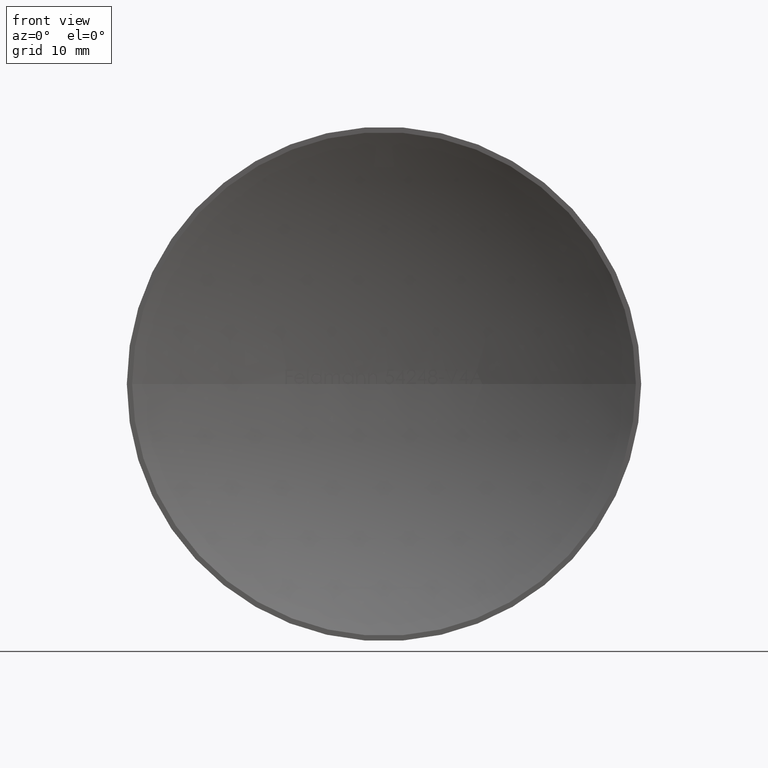
[diagram: clean part render]
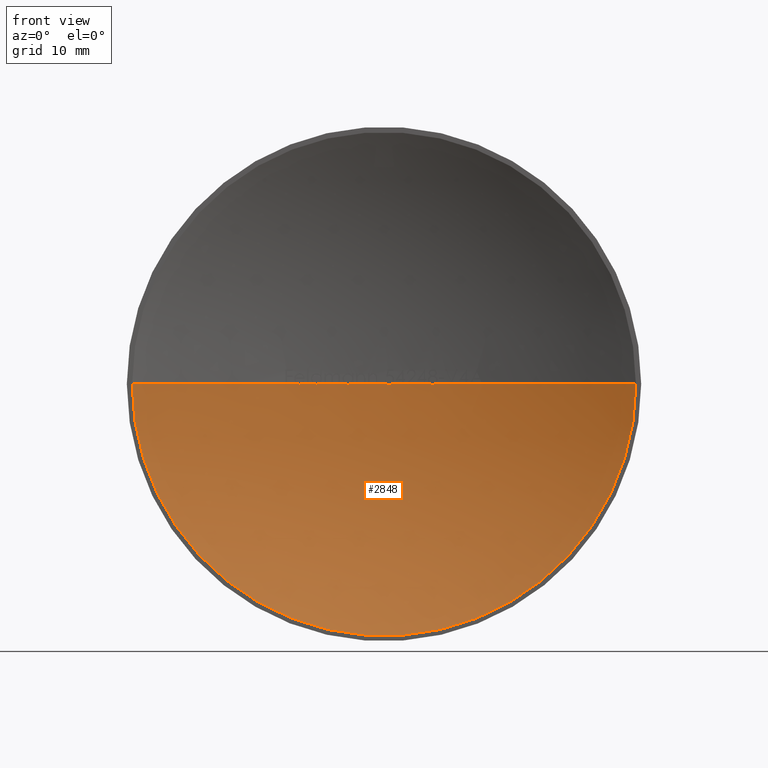
[diagram: same view with one face highlighted and labeled with its STEP entity id]
A machine part, front view. The second image highlights one B-rep face of the part: STEP entity #2848.
In plain terms, the highlighted spherical surface has radius 49.6019 mm.
Its self-contained STEP definition (entity closure, byte-faithful):
#10 = VERTEX_POINT ( 'NONE', #11368 ) ;
#39 = AXIS2_PLACEMENT_3D ( 'NONE', #627, #7061, #3396 ) ;
#40 = CIRCLE ( 'NONE', #39, 49.60187499999996400 ) ;
#108 = VERTEX_POINT ( 'NONE', #2431 ) ;
#145 = CARTESIAN_POINT ( 'NONE',  ( -6.226612658368900100, 5.607629036012613500, -9.957057821960170400E-007 ) ) ;
#162 = VERTEX_POINT ( 'NONE', #5369 ) ;
#190 = ORIENTED_EDGE ( 'NONE', *, *, #9318, .T. ) ;
#207 = CIRCLE ( 'NONE', #514, 49.60187499999996400 ) ;
#216 = B_SPLINE_CURVE_WITH_KNOTS ( 'NONE', 3,
 ( #9828, #5214, #9757, #2445 ),
 .UNSPECIFIED., .F., .F.,
 ( 4, 4 ),
 ( 0.0000000000000000000, 0.1700437307193721500 ),
 .UNSPECIFIED. ) ;
#228 = VERTEX_POINT ( 'NONE', #5445 ) ;
#257 = DIRECTION ( 'NONE',  ( 1.000000000000000000, 0.0000000000000000000, 0.0000000000000000000 ) ) ;
#279 = CARTESIAN_POINT ( 'NONE',  ( 0.4714480669070638100, 5.997747877655553100, -0.03392094017094004300 ) ) ;
#280 = DIRECTION ( 'NONE',  ( 1.000000000000000000, 0.0000000000000000000, 0.0000000000000000000 ) ) ;
#316 = CARTESIAN_POINT ( 'NONE',  ( -3.002003205128187500, 5.909073084964234100, 1.838196808095394700E-016 ) ) ;
#345 = VERTEX_POINT ( 'NONE', #7935 ) ;
#352 = AXIS2_PLACEMENT_3D ( 'NONE', #7267, #9375, #6250 ) ;
#365 = DIRECTION ( 'NONE',  ( 1.000000000000000000, 0.0000000000000000000, 0.0000000000000000000 ) ) ;
#375 = CARTESIAN_POINT ( 'NONE',  ( 4.431990982381381400, 5.801609866054579200, -0.02017112313130817500 ) ) ;
#468 = ORIENTED_EDGE ( 'NONE', *, *, #2536, .T. ) ;
#479 = EDGE_CURVE ( 'NONE', #631, #7059, #5801, .T. ) ;
#514 = AXIS2_PLACEMENT_3D ( 'NONE', #6799, #8611, #6722 ) ;
#522 = CARTESIAN_POINT ( 'NONE',  ( 1.463868500272714700E-014, -43.60187499999997800, 0.0000000000000000000 ) ) ;
#549 = VERTEX_POINT ( 'NONE', #10954 ) ;
#555 = CARTESIAN_POINT ( 'NONE',  ( 4.587994646564998100, 5.787347169221382300, -0.03334965384892677600 ) ) ;
#571 = VERTEX_POINT ( 'NONE', #5423 ) ;
#627 = CARTESIAN_POINT ( 'NONE',  ( 1.463868500272714700E-014, -43.60187499999997800, 0.0000000000000000000 ) ) ;
#631 = VERTEX_POINT ( 'NONE', #6561 ) ;
#663 = AXIS2_PLACEMENT_3D ( 'NONE', #6714, #1138, #6540 ) ;
#694 = ORIENTED_EDGE ( 'NONE', *, *, #9126, .T. ) ;
#726 = VERTEX_POINT ( 'NONE', #8865 ) ;
#757 = EDGE_CURVE ( 'NONE', #9441, #3696, #5055, .T. ) ;
#805 = CIRCLE ( 'NONE', #8875, 49.60187499999996400 ) ;
#838 = DIRECTION ( 'NONE',  ( 1.000000000000000000, 0.0000000000000000000, 0.0000000000000000000 ) ) ;
#867 = ORIENTED_EDGE ( 'NONE', *, *, #479, .F. ) ;
#912 = CARTESIAN_POINT ( 'NONE',  ( 6.343215811965830400, 5.592734630308585000, -1.734723475976807100E-015 ) ) ;
#922 = ORIENTED_EDGE ( 'NONE', *, *, #757, .T. ) ;
#936 = VERTEX_POINT ( 'NONE', #4547 ) ;
#950 = CARTESIAN_POINT ( 'NONE',  ( -1.882612179487161300, 5.964260363746792100, 1.152767489822616700E-016 ) ) ;
#995 = CARTESIAN_POINT ( 'NONE',  ( -6.226612658368900100, 5.607629036012613500, -9.957057821960170400E-007 ) ) ;
#1031 = CARTESIAN_POINT ( 'NONE',  ( 1.463868500272714700E-014, -43.60187499999997800, 0.0000000000000000000 ) ) ;
#1039 = CARTESIAN_POINT ( 'NONE',  ( 1.463868500272714700E-014, -43.60187499999997800, 0.0000000000000000000 ) ) ;
#1096 = VERTEX_POINT ( 'NONE', #9335 ) ;
#1125 = ORIENTED_EDGE ( 'NONE', *, *, #7775, .T. ) ;
#1136 = EDGE_CURVE ( 'NONE', #10200, #5657, #10416, .T. ) ;
#1138 = DIRECTION ( 'NONE',  ( 0.0000000000000000000, -0.0000000000000000000, 1.000000000000000000 ) ) ;
#1144 = AXIS2_PLACEMENT_3D ( 'NONE', #3779, #1998, #4705 ) ;
#1178 = CARTESIAN_POINT ( 'NONE',  ( 0.4399876535721772300, 5.998039705895249300, -0.03267363762147541100 ) ) ;
#1184 = CARTESIAN_POINT ( 'NONE',  ( 4.568991636618609900, 5.789107661918667000, -0.03392094017094017500 ) ) ;
#1185 = CARTESIAN_POINT ( 'NONE',  ( -7.883019392761097400, 5.369585555879120300, -0.01445518751569135500 ) ) ;
#1188 = DIRECTION ( 'NONE',  ( 1.000000000000000000, 0.0000000000000000000, 0.0000000000000000000 ) ) ;
#1211 = ORIENTED_EDGE ( 'NONE', *, *, #3518, .F. ) ;
#1219 = CARTESIAN_POINT ( 'NONE',  ( -7.928314283204311000, 5.362271021320989200, -0.01662975550942169200 ) ) ;
#1237 = ORIENTED_EDGE ( 'NONE', *, *, #11775, .T. ) ;
#1247 = CIRCLE ( 'NONE', #1970, 49.60187499999996400 ) ;
#1253 = ORIENTED_EDGE ( 'NONE', *, *, #2436, .T. ) ;
#1305 = CARTESIAN_POINT ( 'NONE',  ( 3.731303418803432000, 5.859457152626555800, -2.284764394242368700E-016 ) ) ;
#1324 = DIRECTION ( 'NONE',  ( -1.224646799147353200E-016, 8.963609366158087900E-031, -1.000000000000000000 ) ) ;
#1389 = ORIENTED_EDGE ( 'NONE', *, *, #4858, .T. ) ;
#1440 = EDGE_CURVE ( 'NONE', #11227, #108, #6814, .T. ) ;
#1452 = VERTEX_POINT ( 'NONE', #912 ) ;
#1481 = VERTEX_POINT ( 'NONE', #7369 ) ;
#1490 = CARTESIAN_POINT ( 'NONE',  ( -1.763888888888871100, 5.968627312396208100, 3.143324893541612600E-015 ) ) ;
#1496 = CARTESIAN_POINT ( 'NONE',  ( 0.5363757591702189600, 5.997099734483198200, -0.03118921258593569300 ) ) ;
#1503 = CIRCLE ( 'NONE', #10050, 49.60187499999996400 ) ;
#1535 = AXIS2_PLACEMENT_3D ( 'NONE', #3769, #6668, #1935 ) ;
#1569 = DIRECTION ( 'NONE',  ( -1.224646799147353200E-016, 8.963609366158087900E-031, -1.000000000000000000 ) ) ;
#1620 = CARTESIAN_POINT ( 'NONE',  ( 3.746545579650276100E-013, 5.999999999999984900, 0.0000000000000000000 ) ) ;
#1633 = ORIENTED_EDGE ( 'NONE', *, *, #9699, .T. ) ;
#1646 = EDGE_CURVE ( 'NONE', #3401, #11227, #6674, .T. ) ;
#1675 = ORIENTED_EDGE ( 'NONE', *, *, #6019, .T. ) ;
#1694 = ORIENTED_EDGE ( 'NONE', *, *, #9973, .T. ) ;
#1705 = ORIENTED_EDGE ( 'NONE', *, *, #7286, .F. ) ;
#1766 = EDGE_CURVE ( 'NONE', #1452, #4307, #6362, .T. ) ;
#1774 = CARTESIAN_POINT ( 'NONE',  ( 1.463868500272714700E-014, -43.60187499999997800, 0.0000000000000000000 ) ) ;
#1796 = EDGE_CURVE ( 'NONE', #7183, #10649, #4598, .T. ) ;
#1846 = DIRECTION ( 'NONE',  ( 0.0000000000000000000, -0.0000000000000000000, 1.000000000000000000 ) ) ;
#1850 = DIRECTION ( 'NONE',  ( 1.000000000000000000, 0.0000000000000000000, 0.0000000000000000000 ) ) ;
#1860 = DIRECTION ( 'NONE',  ( 1.000000000000000000, 0.0000000000000000000, 0.0000000000000000000 ) ) ;
#1887 = B_SPLINE_CURVE_WITH_KNOTS ( 'NONE', 3,
 ( #4837, #3826, #2004, #3013 ),
 .UNSPECIFIED., .F., .F.,
 ( 4, 4 ),
 ( 0.0000000000000000000, 0.1700436378608668500 ),
 .UNSPECIFIED. ) ;
#1899 = DIRECTION ( 'NONE',  ( -1.224646799147353200E-016, 8.963609366158087900E-031, -1.000000000000000000 ) ) ;
#1907 = EDGE_CURVE ( 'NONE', #4742, #9565, #10403, .T. ) ;
#1908 = CARTESIAN_POINT ( 'NONE',  ( -7.943065154246779600, 5.359879786909640000, -0.01696047008547008800 ) ) ;
#1935 = DIRECTION ( 'NONE',  ( 1.000000000000000000, 0.0000000000000000000, 0.0000000000000000000 ) ) ;
#1944 = DIRECTION ( 'NONE',  ( 1.000000000000000000, 0.0000000000000000000, 0.0000000000000000000 ) ) ;
#1959 = CIRCLE ( 'NONE', #8129, 49.60187499999996400 ) ;
#1970 = AXIS2_PLACEMENT_3D ( 'NONE', #9823, #5160, #7043 ) ;
#1982 = SPHERICAL_SURFACE ( 'NONE', #6621, 49.60187499999996400 ) ;
#1997 = CARTESIAN_POINT ( 'NONE',  ( -8.041944011039884500, 5.343756765751459500, -0.01015184787735114300 ) ) ;
#1998 = DIRECTION ( 'NONE',  ( 0.0000000000000000000, -0.0000000000000000000, 1.000000000000000000 ) ) ;
#2004 = CARTESIAN_POINT ( 'NONE',  ( -6.458560611290854700, 5.577741001095624500, -0.01005142905143983600 ) ) ;
#2007 = ORIENTED_EDGE ( 'NONE', *, *, #2229, .T. ) ;
#2010 = DIRECTION ( 'NONE',  ( 0.0000000000000000000, 0.0000000000000000000, 1.000000000000000000 ) ) ;
#2031 = CARTESIAN_POINT ( 'NONE',  ( -7.913186583796950800, 5.364718321583998400, -0.01618472506284433800 ) ) ;
#2046 = CARTESIAN_POINT ( 'NONE',  ( -4.391605500818018500E-014, 1.665334536937734800E-013, 0.0000000000000000000 ) ) ;
#2060 = AXIS2_PLACEMENT_3D ( 'NONE', #6228, #1569, #11637 ) ;
#2103 = B_SPLINE_CURVE_WITH_KNOTS ( 'NONE', 3,
 ( #145, #9477, #11198, #5676, #7734, #7701, #8718, #2132 ),
 .UNSPECIFIED., .F., .F.,
 ( 4, 2, 2, 4 ),
 ( 0.6910401012932913000, 0.8455200506466424800, 0.9227600253233212400, 1.000000000000000000 ),
 .UNSPECIFIED. ) ;
#2129 = AXIS2_PLACEMENT_3D ( 'NONE', #8088, #3504, #4585 ) ;
#2132 = CARTESIAN_POINT ( 'NONE',  ( -6.364946414262798100, 5.589924855277106800, -0.01696047008546943200 ) ) ;
#2137 = CIRCLE ( 'NONE', #3253, 49.60187499999996400 ) ;
#2142 = EDGE_CURVE ( 'NONE', #5754, #7059, #10974, .T. ) ;
#2183 = CARTESIAN_POINT ( 'NONE',  ( 0.4013284573055194700, 5.998370574416129300, -0.02858794078399176300 ) ) ;
#2219 = CIRCLE ( 'NONE', #663, 49.60187499999996400 ) ;
#2227 = CARTESIAN_POINT ( 'NONE',  ( 1.463868500272714700E-014, -43.60187499999997800, 0.0000000000000000000 ) ) ;
#2229 = EDGE_CURVE ( 'NONE', #11455, #4065, #3232, .T. ) ;
#2243 = VERTEX_POINT ( 'NONE', #5696 ) ;
#2266 = CIRCLE ( 'NONE', #4148, 49.60187499999996400 ) ;
#2270 = CARTESIAN_POINT ( 'NONE',  ( 4.531420792569199400, 5.792583847021854900, -0.03299744222188836400 ) ) ;
#2298 = DIRECTION ( 'NONE',  ( 1.000000000000000000, 0.0000000000000000000, 0.0000000000000000000 ) ) ;
#2308 = AXIS2_PLACEMENT_3D ( 'NONE', #10644, #2368, #365 ) ;
#2317 = ORIENTED_EDGE ( 'NONE', *, *, #1646, .T. ) ;
#2368 = DIRECTION ( 'NONE',  ( 0.0000000000000000000, 0.0000000000000000000, 1.000000000000000000 ) ) ;
#2381 = CARTESIAN_POINT ( 'NONE',  ( -7.800518608418492800, 5.382795007984992000, 1.945083943452014200E-006 ) ) ;
#2389 = DIRECTION ( 'NONE',  ( 1.000000000000000000, 0.0000000000000000000, 0.0000000000000000000 ) ) ;
#2395 = DIRECTION ( 'NONE',  ( 0.0000000000000000000, -0.0000000000000000000, 1.000000000000000000 ) ) ;
#2396 = CARTESIAN_POINT ( 'NONE',  ( -3.303843915656597300, 5.889852252255058900, -0.01009591311907614800 ) ) ;
#2398 = AXIS2_PLACEMENT_3D ( 'NONE', #2808, #10229, #11157 ) ;
#2400 = ORIENTED_EDGE ( 'NONE', *, *, #11480, .T. ) ;
#2414 = DIRECTION ( 'NONE',  ( 0.0000000000000000000, 0.0000000000000000000, 1.000000000000000000 ) ) ;
#2418 = CARTESIAN_POINT ( 'NONE',  ( -5.851362179487160200, 5.653658335454711200, 4.021375415970687700E-015 ) ) ;
#2431 = CARTESIAN_POINT ( 'NONE',  ( -2.493189102564084900, 5.937301533471763400, 4.044532931607455300E-015 ) ) ;
#2436 = EDGE_CURVE ( 'NONE', #6703, #4154, #9695, .T. ) ;
#2440 = AXIS2_PLACEMENT_3D ( 'NONE', #2046, #8546, #2968 ) ;
#2445 = CARTESIAN_POINT ( 'NONE',  ( -3.530511154244028800, 5.874194794178776200, -2.442055884541107000E-006 ) ) ;
#2451 = CARTESIAN_POINT ( 'NONE',  ( 0.6300683526230406200, 5.996006567048705300, -0.01163507838607711300 ) ) ;
#2456 = ORIENTED_EDGE ( 'NONE', *, *, #2142, .T. ) ;
#2470 = ORIENTED_EDGE ( 'NONE', *, *, #6840, .T. ) ;
#2480 = CARTESIAN_POINT ( 'NONE',  ( 1.463868500272714700E-014, -43.60187499999997800, 0.0000000000000000000 ) ) ;
#2497 = ORIENTED_EDGE ( 'NONE', *, *, #10679, .T. ) ;
#2530 = CIRCLE ( 'NONE', #11724, 49.60187499999996400 ) ;
#2536 = EDGE_CURVE ( 'NONE', #108, #3065, #3875, .T. ) ;
#2642 = CARTESIAN_POINT ( 'NONE',  ( 1.463868500272714700E-014, -43.60187499999997800, 0.0000000000000000000 ) ) ;
#2690 = CIRCLE ( 'NONE', #8402, 49.60187499999996400 ) ;
#2701 = CIRCLE ( 'NONE', #10870, 49.60187499999996400 ) ;
#2779 = AXIS2_PLACEMENT_3D ( 'NONE', #5511, #11936, #1850 ) ;
#2792 = VERTEX_POINT ( 'NONE', #11032 ) ;
#2808 = CARTESIAN_POINT ( 'NONE',  ( 1.463868500272714700E-014, -43.60187499999997800, 0.0000000000000000000 ) ) ;
#2816 = CARTESIAN_POINT ( 'NONE',  ( -7.106436965811949100, 5.488292622107024100, 3.441049596577242400E-015 ) ) ;
#2848 = ADVANCED_FACE ( 'NONE', ( #9961 ), #1982, .F. ) ;
#2956 = CARTESIAN_POINT ( 'NONE',  ( -7.916472698650946600, 5.364187067465275400, -0.01628299500019538000 ) ) ;
#2968 = DIRECTION ( 'NONE',  ( 1.000000000000000000, -7.319342501363578300E-015, 0.0000000000000000000 ) ) ;
#2978 = CIRCLE ( 'NONE', #5296, 49.60187499999996400 ) ;
#2983 = DIRECTION ( 'NONE',  ( 1.000000000000000000, 0.0000000000000000000, 0.0000000000000000000 ) ) ;
#3001 = CARTESIAN_POINT ( 'NONE',  ( -7.800518608418492800, 5.382795007984992000, 1.945083943452014200E-006 ) ) ;
#3013 = CARTESIAN_POINT ( 'NONE',  ( -6.498605886093242700, 5.572448708209120300, 1.836445652789093900E-006 ) ) ;
#3016 = AXIS2_PLACEMENT_3D ( 'NONE', #10985, #5452, #7280 ) ;
#3065 = VERTEX_POINT ( 'NONE', #3614 ) ;
#3079 = CARTESIAN_POINT ( 'NONE',  ( -7.822097072414690500, 5.379358940805369500, -0.005628094156013560700 ) ) ;
#3080 = VERTEX_POINT ( 'NONE', #6300 ) ;
#3098 = AXIS2_PLACEMENT_3D ( 'NONE', #7304, #8397, #5645 ) ;
#3108 = CARTESIAN_POINT ( 'NONE',  ( 0.3330910460351451700, 5.998890002460053800, -0.01318764904280849400 ) ) ;
#3109 = CARTESIAN_POINT ( 'NONE',  ( 1.463868500272714700E-014, -43.60187499999997800, 0.0000000000000000000 ) ) ;
#3116 = CARTESIAN_POINT ( 'NONE',  ( -4.138354700854685900, 5.827064133725468100, 4.035532806357746200E-015 ) ) ;
#3171 = DIRECTION ( 'NONE',  ( 0.0000000000000000000, 0.0000000000000000000, 1.000000000000000000 ) ) ;
#3180 = DIRECTION ( 'NONE',  ( -1.000000000000000000, 0.0000000000000000000, 1.224646799147353200E-016 ) ) ;
#3189 = EDGE_CURVE ( 'NONE', #8859, #3080, #8225, .T. ) ;
#3211 = CIRCLE ( 'NONE', #9612, 49.60187499999996400 ) ;
#3224 = EDGE_CURVE ( 'NONE', #4065, #6801, #9112, .T. ) ;
#3232 = B_SPLINE_CURVE_WITH_KNOTS ( 'NONE', 3,
 ( #4915, #3820, #1997, #8491 ),
 .UNSPECIFIED., .F., .F.,
 ( 4, 4 ),
 ( 0.0000000000000000000, 0.1815158265519445100 ),
 .UNSPECIFIED. ) ;
#3250 = EDGE_CURVE ( 'NONE', #3615, #4307, #4599, .T. ) ;
#3253 = AXIS2_PLACEMENT_3D ( 'NONE', #10949, #11809, #9121 ) ;
#3296 = B_SPLINE_CURVE_WITH_KNOTS ( 'NONE', 3,
 ( #279, #6753, #1178, #6832, #2183, #7665, #3108, #10529 ),
 .UNSPECIFIED., .F., .F.,
 ( 4, 2, 2, 4 ),
 ( 0.0000000000000000000, 0.06997804774027807700, 0.1399560954805561500, 0.2799121909611123100 ),
 .UNSPECIFIED. ) ;
#3307 = EDGE_CURVE ( 'NONE', #1096, #5066, #11636, .T. ) ;
#3316 = CARTESIAN_POINT ( 'NONE',  ( 7.666132478632492900, 5.404006446370083000, -4.694152300898195200E-016 ) ) ;
#3375 = DIRECTION ( 'NONE',  ( 0.0000000000000000000, -0.0000000000000000000, 1.000000000000000000 ) ) ;
#3377 = ORIENTED_EDGE ( 'NONE', *, *, #8657, .T. ) ;
#3396 = DIRECTION ( 'NONE',  ( -1.000000000000000000, 0.0000000000000000000, 1.224646799147353200E-016 ) ) ;
#3401 = VERTEX_POINT ( 'NONE', #1490 ) ;
#3450 = CARTESIAN_POINT ( 'NONE',  ( 1.463868500272714700E-014, -43.60187499999997800, 0.0000000000000000000 ) ) ;
#3451 = AXIS2_PLACEMENT_3D ( 'NONE', #4721, #3922, #10262 ) ;
#3461 = CARTESIAN_POINT ( 'NONE',  ( 4.637264987956470500, 5.782749932899021100, -0.03047522695824051900 ) ) ;
#3464 = EDGE_CURVE ( 'NONE', #8816, #6703, #216, .T. ) ;
#3498 = ORIENTED_EDGE ( 'NONE', *, *, #1440, .T. ) ;
#3504 = DIRECTION ( 'NONE',  ( 0.0000000000000000000, 0.0000000000000000000, 1.000000000000000000 ) ) ;
#3518 = EDGE_CURVE ( 'NONE', #7183, #549, #2137, .T. ) ;
#3533 = CIRCLE ( 'NONE', #10384, 49.60187499999996400 ) ;
#3614 = CARTESIAN_POINT ( 'NONE',  ( -2.611912393162378900, 5.931183831108630700, 0.0000000000000000000 ) ) ;
#3615 = VERTEX_POINT ( 'NONE', #7484 ) ;
#3647 = VERTEX_POINT ( 'NONE', #11885 ) ;
#3670 = EDGE_CURVE ( 'NONE', #1481, #10200, #1887, .T. ) ;
#3690 = CARTESIAN_POINT ( 'NONE',  ( -2.883279914529897100, 5.916128801143801600, 4.042804323682479400E-015 ) ) ;
#3696 = VERTEX_POINT ( 'NONE', #4752 ) ;
#3723 = DIRECTION ( 'NONE',  ( 0.0000000000000000000, -0.0000000000000000000, 1.000000000000000000 ) ) ;
#3769 = CARTESIAN_POINT ( 'NONE',  ( 1.463868500272714700E-014, -43.60187499999997800, 0.0000000000000000000 ) ) ;
#3779 = CARTESIAN_POINT ( 'NONE',  ( 1.463868500272714700E-014, -43.60187499999997800, 0.0000000000000000000 ) ) ;
#3805 = CARTESIAN_POINT ( 'NONE',  ( 1.463868500272714700E-014, -43.60187499999997800, 0.0000000000000000000 ) ) ;
#3820 = CARTESIAN_POINT ( 'NONE',  ( -7.995302772501664100, 5.351405700863822700, -0.01574102966602066900 ) ) ;
#3826 = CARTESIAN_POINT ( 'NONE',  ( -6.413997492261013500, 5.583578576024883900, -0.01562889026966440800 ) ) ;
#3833 = EDGE_CURVE ( 'NONE', #3647, #4211, #2701, .T. ) ;
#3861 = DIRECTION ( 'NONE',  ( 1.000000000000000000, 0.0000000000000000000, 0.0000000000000000000 ) ) ;
#3863 = CIRCLE ( 'NONE', #5640, 49.60187499999996400 ) ;
#3875 = CIRCLE ( 'NONE', #352, 49.60187499999996400 ) ;
#3895 = VERTEX_POINT ( 'NONE', #11717 ) ;
#3922 = DIRECTION ( 'NONE',  ( 0.0000000000000000000, 0.0000000000000000000, 1.000000000000000000 ) ) ;
#4000 = CARTESIAN_POINT ( 'NONE',  ( 1.463868500272714700E-014, -43.60187499999997800, 0.0000000000000000000 ) ) ;
#4019 = EDGE_CURVE ( 'NONE', #4211, #7732, #2690, .T. ) ;
#4038 = EDGE_CURVE ( 'NONE', #4732, #10716, #207, .T. ) ;
#4065 = VERTEX_POINT ( 'NONE', #4911 ) ;
#4076 = EDGE_CURVE ( 'NONE', #7732, #1096, #9540, .T. ) ;
#4102 = DIRECTION ( 'NONE',  ( -1.224646799147353200E-016, 8.963609366158087900E-031, -1.000000000000000000 ) ) ;
#4118 = B_SPLINE_CURVE_WITH_KNOTS ( 'NONE', 3,
 ( #5304, #2451, #5176, #1496, #7982, #5222 ),
 .UNSPECIFIED., .F., .F.,
 ( 4, 2, 4 ),
 ( 0.7372710863262805800, 0.8686355431631402900, 1.000000000000000000 ),
 .UNSPECIFIED. ) ;
#4129 = CARTESIAN_POINT ( 'NONE',  ( 1.463868500272714700E-014, -43.60187499999997800, 0.0000000000000000000 ) ) ;
#4139 = EDGE_CURVE ( 'NONE', #6566, #11455, #7259, .T. ) ;
#4140 = CARTESIAN_POINT ( 'NONE',  ( 4.501985760791040300, 5.795275009956854200, -0.03103153326414219800 ) ) ;
#4148 = AXIS2_PLACEMENT_3D ( 'NONE', #7139, #2414, #5308 ) ;
#4150 = EDGE_LOOP ( 'NONE', ( #1211, #8115, #1237, #1389, #10455, #10806, #2317, #3498, #468, #11773, #4937, #694, #1694, #7711, #1253, #1125, #2400, #6243, #7121, #9754, #5949, #2497, #9655, #3377, #8404, #11864, #1675, #190, #7063, #2007, #10884, #6487, #11872, #8969, #10875, #4226, #9183, #922, #8410, #9825, #6167, #1633, #5485, #7981, #10302, #1705, #2456, #867, #2470, #5968, #4221, #8682, #8072, #11861 ) ) ;
#4154 = VERTEX_POINT ( 'NONE', #3116 ) ;
#4181 = CARTESIAN_POINT ( 'NONE',  ( 4.369938086682133800, 5.807128643061711100, -1.037965149739277700E-005 ) ) ;
#4211 = VERTEX_POINT ( 'NONE', #5230 ) ;
#4221 = ORIENTED_EDGE ( 'NONE', *, *, #1907, .T. ) ;
#4226 = ORIENTED_EDGE ( 'NONE', *, *, #5349, .T. ) ;
#4253 = CIRCLE ( 'NONE', #1144, 49.60187499999996400 ) ;
#4275 = CIRCLE ( 'NONE', #2129, 49.60187499999996400 ) ;
#4307 = VERTEX_POINT ( 'NONE', #3316 ) ;
#4547 = CARTESIAN_POINT ( 'NONE',  ( -4.257077991452976400, 5.816980616963750400, 2.606708467976995200E-016 ) ) ;
#4566 = B_SPLINE_CURVE_WITH_KNOTS ( 'NONE', 3,
 ( #7754, #8499, #7122, #5248, #3461, #5001, #6264, #555, #5204, #11444 ),
 .UNSPECIFIED., .F., .F.,
 ( 4, 2, 2, 2, 4 ),
 ( 0.4912322466924590200, 0.7456161233462265100, 0.8728080616731102000, 0.9364040308365551000, 1.000000000000000000 ),
 .UNSPECIFIED. ) ;
#4585 = DIRECTION ( 'NONE',  ( 1.000000000000000000, 0.0000000000000000000, 0.0000000000000000000 ) ) ;
#4598 = CIRCLE ( 'NONE', #11833, 49.60187499999996400 ) ;
#4599 = CIRCLE ( 'NONE', #8635, 49.60187499999996400 ) ;
#4604 = CARTESIAN_POINT ( 'NONE',  ( 1.696047008547020700, 5.970994879203307600, -1.038529270110045100E-016 ) ) ;
#4649 = CARTESIAN_POINT ( 'NONE',  ( 1.463868500272714700E-014, -43.60187499999997800, 0.0000000000000000000 ) ) ;
#4665 = CARTESIAN_POINT ( 'NONE',  ( 1.463868500272714700E-014, -43.60187499999997800, 0.0000000000000000000 ) ) ;
#4687 = CIRCLE ( 'NONE', #2060, 49.60187499999996400 ) ;
#4701 = CARTESIAN_POINT ( 'NONE',  ( 1.463868500272714700E-014, -43.60187499999997800, 0.0000000000000000000 ) ) ;
#4702 = VERTEX_POINT ( 'NONE', #9069 ) ;
#4705 = DIRECTION ( 'NONE',  ( 1.000000000000000000, 0.0000000000000000000, 0.0000000000000000000 ) ) ;
#4721 = CARTESIAN_POINT ( 'NONE',  ( 1.463868500272714700E-014, -43.60187499999997800, 0.0000000000000000000 ) ) ;
#4732 = VERTEX_POINT ( 'NONE', #3690 ) ;
#4742 = VERTEX_POINT ( 'NONE', #9257 ) ;
#4752 = CARTESIAN_POINT ( 'NONE',  ( 8.073183760683781100, 5.338596059051480000, -1.529495840899927700E-016 ) ) ;
#4802 = VERTEX_POINT ( 'NONE', #10242 ) ;
#4805 = DIRECTION ( 'NONE',  ( -1.224646799147353200E-016, 8.963609366158087900E-031, -1.000000000000000000 ) ) ;
#4837 = CARTESIAN_POINT ( 'NONE',  ( -6.364946414262798100, 5.589924855277106800, -0.01696047008546943200 ) ) ;
#4848 = AXIS2_PLACEMENT_3D ( 'NONE', #2227, #4102, #5036 ) ;
#4858 = EDGE_CURVE ( 'NONE', #571, #8859, #5919, .T. ) ;
#4866 = CARTESIAN_POINT ( 'NONE',  ( 1.463868500272714700E-014, -43.60187499999997800, 0.0000000000000000000 ) ) ;
#4879 = DIRECTION ( 'NONE',  ( -1.000000000000000000, 7.274371845886393700E-015, 0.0000000000000000000 ) ) ;
#4911 = CARTESIAN_POINT ( 'NONE',  ( -8.082967301139779800, 5.336980841559007900, 4.242736583977649100E-006 ) ) ;
#4915 = CARTESIAN_POINT ( 'NONE',  ( -7.943065154246779600, 5.359879786909640000, -0.01696047008547008800 ) ) ;
#4937 = ORIENTED_EDGE ( 'NONE', *, *, #4038, .T. ) ;
#4988 = CARTESIAN_POINT ( 'NONE',  ( 3.850026709401728200, 5.850357486031580100, 2.792329766920456400E-015 ) ) ;
#5001 = CARTESIAN_POINT ( 'NONE',  ( 4.610134896346139000, 5.785286246037726300, -0.03235274104031997400 ) ) ;
#5024 = VERTEX_POINT ( 'NONE', #8934 ) ;
#5036 = DIRECTION ( 'NONE',  ( -1.000000000000000000, 0.0000000000000000000, 1.224646799147353200E-016 ) ) ;
#5055 = CIRCLE ( 'NONE', #10230, 49.60187499999996400 ) ;
#5066 = VERTEX_POINT ( 'NONE', #2418 ) ;
#5130 = DIRECTION ( 'NONE',  ( 0.0000000000000000000, 0.0000000000000000000, 1.000000000000000000 ) ) ;
#5160 = DIRECTION ( 'NONE',  ( 0.0000000000000000000, -0.0000000000000000000, 1.000000000000000000 ) ) ;
#5162 = CARTESIAN_POINT ( 'NONE',  ( -3.258509390550255800, 5.892853095419170900, 1.255227324845049300E-006 ) ) ;
#5174 = DIRECTION ( 'NONE',  ( 1.000000000000000000, 0.0000000000000000000, 0.0000000000000000000 ) ) ;
#5176 = CARTESIAN_POINT ( 'NONE',  ( 0.5975300199430215700, 5.996406204313470500, -0.02063703035633919800 ) ) ;
#5204 = CARTESIAN_POINT ( 'NONE',  ( 4.578885256501982000, 5.788192615350997300, -0.03366100207936540600 ) ) ;
#5214 = CARTESIAN_POINT ( 'NONE',  ( -3.445608191720471500, 5.880201877462472000, -0.01563722530331266100 ) ) ;
#5222 = CARTESIAN_POINT ( 'NONE',  ( 0.4714480669070638100, 5.997747877655553100, -0.03392094017094004300 ) ) ;
#5230 = CARTESIAN_POINT ( 'NONE',  ( -4.918536324786311200, 5.755535830972291900, 3.011734883320004400E-016 ) ) ;
#5248 = CARTESIAN_POINT ( 'NONE',  ( 4.652480463137231400, 5.781319274359270300, -0.02886032238808972100 ) ) ;
#5254 = CARTESIAN_POINT ( 'NONE',  ( -3.396864149305538500, 5.883547396997287600, -0.01696047008546992100 ) ) ;
#5296 = AXIS2_PLACEMENT_3D ( 'NONE', #522, #8923, #5174 ) ;
#5304 = CARTESIAN_POINT ( 'NONE',  ( 0.6590239562256844400, 5.995621750269922500, -9.775773506729663700E-007 ) ) ;
#5308 = DIRECTION ( 'NONE',  ( 1.000000000000000000, 0.0000000000000000000, 0.0000000000000000000 ) ) ;
#5323 = CARTESIAN_POINT ( 'NONE',  ( 8.202772352430571300, 5.317042907593019200, -1.369636683265305800E-015 ) ) ;
#5328 = CARTESIAN_POINT ( 'NONE',  ( -9.124732905982892100, 5.153486273506077400, 4.102862350882292200E-015 ) ) ;
#5349 = EDGE_CURVE ( 'NONE', #2792, #5024, #2266, .T. ) ;
#5369 = CARTESIAN_POINT ( 'NONE',  ( 4.568991636618609900, 5.789107661918667000, -0.03392094017094017500 ) ) ;
#5423 = CARTESIAN_POINT ( 'NONE',  ( -0.7632211538461390900, 5.994127832747977000, 4.673381715498411500E-017 ) ) ;
#5445 = CARTESIAN_POINT ( 'NONE',  ( -23.64788574058970700, 3.398131150768590300E-013, 0.0000000000000000000 ) ) ;
#5452 = DIRECTION ( 'NONE',  ( 0.0000000000000000000, 0.0000000000000000000, 1.000000000000000000 ) ) ;
#5463 = DIRECTION ( 'NONE',  ( -1.000000000000000000, 0.0000000000000000000, 1.224646799147353200E-016 ) ) ;
#5485 = ORIENTED_EDGE ( 'NONE', *, *, #7042, .F. ) ;
#5511 = CARTESIAN_POINT ( 'NONE',  ( 1.463868500272714700E-014, -43.60187499999997800, 0.0000000000000000000 ) ) ;
#5561 = CIRCLE ( 'NONE', #5724, 49.60187499999996400 ) ;
#5593 = DIRECTION ( 'NONE',  ( -1.224646799147353200E-016, 8.963609366158087900E-031, -1.000000000000000000 ) ) ;
#5601 = DIRECTION ( 'NONE',  ( 1.000000000000000000, 0.0000000000000000000, 0.0000000000000000000 ) ) ;
#5635 = DIRECTION ( 'NONE',  ( 1.000000000000000000, 0.0000000000000000000, 0.0000000000000000000 ) ) ;
#5640 = AXIS2_PLACEMENT_3D ( 'NONE', #3450, #6087, #8898 ) ;
#5645 = DIRECTION ( 'NONE',  ( 1.000000000000000000, 0.0000000000000000000, 0.0000000000000000000 ) ) ;
#5657 = VERTEX_POINT ( 'NONE', #2816 ) ;
#5676 = CARTESIAN_POINT ( 'NONE',  ( -6.306792776752338600, 5.597416698146004100, -0.01425350854040082100 ) ) ;
#5696 = CARTESIAN_POINT ( 'NONE',  ( 4.764994378956303400, 5.770595250184490200, 3.377317599478902800E-009 ) ) ;
#5724 = AXIS2_PLACEMENT_3D ( 'NONE', #3805, #3723, #5601 ) ;
#5739 = EDGE_CURVE ( 'NONE', #10, #549, #3296, .T. ) ;
#5746 = CARTESIAN_POINT ( 'NONE',  ( 1.463868500272714700E-014, -43.60187499999997800, 0.0000000000000000000 ) ) ;
#5754 = VERTEX_POINT ( 'NONE', #4988 ) ;
#5791 = DIRECTION ( 'NONE',  ( -1.000000000000000000, 0.0000000000000000000, 1.224646799147353200E-016 ) ) ;
#5801 = CIRCLE ( 'NONE', #6932, 49.60187499999996400 ) ;
#5848 = DIRECTION ( 'NONE',  ( 1.000000000000000000, 0.0000000000000000000, 0.0000000000000000000 ) ) ;
#5858 = DIRECTION ( 'NONE',  ( 0.0000000000000000000, 0.0000000000000000000, -1.000000000000000000 ) ) ;
#5919 = CIRCLE ( 'NONE', #8805, 49.60187499999996400 ) ;
#5949 = ORIENTED_EDGE ( 'NONE', *, *, #3307, .T. ) ;
#5968 = ORIENTED_EDGE ( 'NONE', *, *, #11769, .F. ) ;
#6019 = EDGE_CURVE ( 'NONE', #5657, #4702, #11361, .T. ) ;
#6081 = VERTEX_POINT ( 'NONE', #995 ) ;
#6087 = DIRECTION ( 'NONE',  ( -1.224646799147353200E-016, 8.963609366158087900E-031, -1.000000000000000000 ) ) ;
#6161 = CARTESIAN_POINT ( 'NONE',  ( -9.243456196581192300, 5.131117120918533600, 1.131996904420238500E-015 ) ) ;
#6167 = ORIENTED_EDGE ( 'NONE', *, *, #1766, .F. ) ;
#6224 = CARTESIAN_POINT ( 'NONE',  ( -3.338678832277893500, 5.887509330088500200, -0.01425341817955603500 ) ) ;
#6228 = CARTESIAN_POINT ( 'NONE',  ( 1.463868500272714700E-014, -43.60187499999997800, 0.0000000000000000000 ) ) ;
#6233 = EDGE_CURVE ( 'NONE', #3065, #4732, #1247, .T. ) ;
#6243 = ORIENTED_EDGE ( 'NONE', *, *, #3833, .T. ) ;
#6250 = DIRECTION ( 'NONE',  ( 1.000000000000000000, 0.0000000000000000000, 0.0000000000000000000 ) ) ;
#6264 = CARTESIAN_POINT ( 'NONE',  ( 4.604645142365441800, 5.785798081054630300, -0.03262374583242547800 ) ) ;
#6300 = CARTESIAN_POINT ( 'NONE',  ( -1.492521367521353100, 5.977539916708287200, 0.0000000000000000000 ) ) ;
#6362 = CIRCLE ( 'NONE', #7149, 49.60187499999996400 ) ;
#6382 = VERTEX_POINT ( 'NONE', #9265 ) ;
#6412 = CARTESIAN_POINT ( 'NONE',  ( 1.463868500272714700E-014, -43.60187499999997800, 0.0000000000000000000 ) ) ;
#6476 = CARTESIAN_POINT ( 'NONE',  ( -5.461271367521353800, 5.698434517952468200, 4.025031083208948600E-015 ) ) ;
#6487 = ORIENTED_EDGE ( 'NONE', *, *, #9096, .T. ) ;
#6540 = DIRECTION ( 'NONE',  ( 1.000000000000000000, 0.0000000000000000000, 0.0000000000000000000 ) ) ;
#6561 = CARTESIAN_POINT ( 'NONE',  ( 2.985042735042751100, 5.910098535555942300, 4.042311993985801400E-015 ) ) ;
#6565 = CARTESIAN_POINT ( 'NONE',  ( -6.498605886093242700, 5.572448708209120300, 1.836445652789093900E-006 ) ) ;
#6566 = VERTEX_POINT ( 'NONE', #2381 ) ;
#6567 = EDGE_CURVE ( 'NONE', #9441, #5024, #3863, .T. ) ;
#6614 = CARTESIAN_POINT ( 'NONE',  ( 1.463868500272714700E-014, -43.60187499999997800, 0.0000000000000000000 ) ) ;
#6621 = AXIS2_PLACEMENT_3D ( 'NONE', #8496, #5858, #4879 ) ;
#6624 = CIRCLE ( 'NONE', #4848, 49.60187499999996400 ) ;
#6668 = DIRECTION ( 'NONE',  ( 0.0000000000000000000, 0.0000000000000000000, 1.000000000000000000 ) ) ;
#6674 = CIRCLE ( 'NONE', #6708, 49.60187499999996400 ) ;
#6703 = VERTEX_POINT ( 'NONE', #7637 ) ;
#6708 = AXIS2_PLACEMENT_3D ( 'NONE', #5746, #2010, #9472 ) ;
#6714 = CARTESIAN_POINT ( 'NONE',  ( 1.463868500272714700E-014, -43.60187499999997800, 0.0000000000000000000 ) ) ;
#6722 = DIRECTION ( 'NONE',  ( 1.000000000000000000, 0.0000000000000000000, 0.0000000000000000000 ) ) ;
#6753 = CARTESIAN_POINT ( 'NONE',  ( 0.4550682768500932100, 5.997903791294708900, -0.03359555575116335300 ) ) ;
#6757 = EDGE_CURVE ( 'NONE', #2243, #162, #4566, .T. ) ;
#6790 = AXIS2_PLACEMENT_3D ( 'NONE', #7713, #7594, #10420 ) ;
#6799 = CARTESIAN_POINT ( 'NONE',  ( 1.463868500272714700E-014, -43.60187499999997800, 0.0000000000000000000 ) ) ;
#6801 = VERTEX_POINT ( 'NONE', #5328 ) ;
#6814 = CIRCLE ( 'NONE', #11838, 49.60187499999996400 ) ;
#6832 = CARTESIAN_POINT ( 'NONE',  ( 0.4124042215429398800, 5.998278412492211100, -0.02999582081033741800 ) ) ;
#6840 = EDGE_CURVE ( 'NONE', #631, #3895, #4275, .T. ) ;
#6876 = CIRCLE ( 'NONE', #2308, 49.60187499999996400 ) ;
#6932 = AXIS2_PLACEMENT_3D ( 'NONE', #2642, #10135, #5463 ) ;
#6994 = EDGE_CURVE ( 'NONE', #162, #726, #7989, .T. ) ;
#7042 = EDGE_CURVE ( 'NONE', #2243, #8831, #6624, .T. ) ;
#7043 = DIRECTION ( 'NONE',  ( 1.000000000000000000, 0.0000000000000000000, 0.0000000000000000000 ) ) ;
#7059 = VERTEX_POINT ( 'NONE', #1305 ) ;
#7061 = DIRECTION ( 'NONE',  ( -1.224646799147353200E-016, 8.963609366158087900E-031, -1.000000000000000000 ) ) ;
#7063 = ORIENTED_EDGE ( 'NONE', *, *, #4139, .T. ) ;
#7072 = DIRECTION ( 'NONE',  ( 0.0000000000000000000, 0.0000000000000000000, 1.000000000000000000 ) ) ;
#7121 = ORIENTED_EDGE ( 'NONE', *, *, #4019, .T. ) ;
#7122 = CARTESIAN_POINT ( 'NONE',  ( 4.701882391384768500, 5.776652624375601300, -0.02091765422168829400 ) ) ;
#7139 = CARTESIAN_POINT ( 'NONE',  ( 1.463868500272714700E-014, -43.60187499999997800, 0.0000000000000000000 ) ) ;
#7149 = AXIS2_PLACEMENT_3D ( 'NONE', #4000, #1324, #3180 ) ;
#7183 = VERTEX_POINT ( 'NONE', #1620 ) ;
#7188 = CIRCLE ( 'NONE', #2440, 23.64788574059004100 ) ;
#7245 = DIRECTION ( 'NONE',  ( 1.000000000000000000, 0.0000000000000000000, 0.0000000000000000000 ) ) ;
#7259 = B_SPLINE_CURVE_WITH_KNOTS ( 'NONE', 3,
 ( #3001, #3079, #8487, #1185, #11358, #2031, #2956, #1219, #10374, #7555 ),
 .UNSPECIFIED., .F., .F.,
 ( 4, 2, 2, 2, 4 ),
 ( 0.7360846033174910400, 0.8680423016587411900, 0.9340211508293662100, 0.9670105754146831600, 1.000000000000000000 ),
 .UNSPECIFIED. ) ;
#7267 = CARTESIAN_POINT ( 'NONE',  ( 1.463868500272714700E-014, -43.60187499999997800, 0.0000000000000000000 ) ) ;
#7280 = DIRECTION ( 'NONE',  ( 1.000000000000000000, 0.0000000000000000000, 0.0000000000000000000 ) ) ;
#7286 = EDGE_CURVE ( 'NONE', #5754, #726, #1959, .T. ) ;
#7304 = CARTESIAN_POINT ( 'NONE',  ( 1.463868500272714700E-014, -43.60187499999997800, 0.0000000000000000000 ) ) ;
#7369 = CARTESIAN_POINT ( 'NONE',  ( -6.364946414262798100, 5.589924855277106800, -0.01696047008546943200 ) ) ;
#7430 = DIRECTION ( 'NONE',  ( 0.0000000000000000000, 0.0000000000000000000, 1.000000000000000000 ) ) ;
#7484 = CARTESIAN_POINT ( 'NONE',  ( 7.784855769230781600, 5.385286830094812200, 2.522913611746358100E-015 ) ) ;
#7555 = CARTESIAN_POINT ( 'NONE',  ( -7.943065154246779600, 5.359879786909640000, -0.01696047008547008800 ) ) ;
#7584 = DIRECTION ( 'NONE',  ( -1.000000000000000000, 0.0000000000000000000, 1.224646799147353200E-016 ) ) ;
#7594 = DIRECTION ( 'NONE',  ( 0.0000000000000000000, 0.0000000000000000000, 1.000000000000000000 ) ) ;
#7637 = CARTESIAN_POINT ( 'NONE',  ( -3.530511154244028800, 5.874194794178776200, -2.442055884541107000E-006 ) ) ;
#7638 = CARTESIAN_POINT ( 'NONE',  ( 1.463868500272714700E-014, -43.60187499999997800, 0.0000000000000000000 ) ) ;
#7665 = CARTESIAN_POINT ( 'NONE',  ( 0.3557248921733886000, 5.998730051930278000, -0.01997774265342228500 ) ) ;
#7701 = CARTESIAN_POINT ( 'NONE',  ( -6.336694267179193900, 5.593573644534807900, -0.01613123715709226600 ) ) ;
#7711 = ORIENTED_EDGE ( 'NONE', *, *, #3464, .T. ) ;
#7713 = CARTESIAN_POINT ( 'NONE',  ( 1.463868500272714700E-014, -43.60187499999997800, 0.0000000000000000000 ) ) ;
#7732 = VERTEX_POINT ( 'NONE', #6476 ) ;
#7734 = CARTESIAN_POINT ( 'NONE',  ( -6.315153725222270300, 5.596343790057023400, -0.01493660157767304000 ) ) ;
#7739 = CIRCLE ( 'NONE', #1535, 49.60187499999996400 ) ;
#7745 = AXIS2_PLACEMENT_3D ( 'NONE', #1774, #7430, #1860 ) ;
#7754 = CARTESIAN_POINT ( 'NONE',  ( 4.764994378956303400, 5.770595250184490200, 3.377317599478902800E-009 ) ) ;
#7775 = EDGE_CURVE ( 'NONE', #4154, #936, #2530, .T. ) ;
#7820 = EDGE_CURVE ( 'NONE', #228, #11364, #7188, .T. ) ;
#7864 = CARTESIAN_POINT ( 'NONE',  ( -0.6444978632478494100, 5.995812708399189900, 4.049309966480070600E-015 ) ) ;
#7935 = CARTESIAN_POINT ( 'NONE',  ( -3.258509390550255800, 5.892853095419170900, 1.255227324845049300E-006 ) ) ;
#7970 = CARTESIAN_POINT ( 'NONE',  ( -3.368580987319555600, 5.885482198340239900, -0.01612981265740299300 ) ) ;
#7981 = ORIENTED_EDGE ( 'NONE', *, *, #6757, .T. ) ;
#7982 = CARTESIAN_POINT ( 'NONE',  ( 0.5043560643231128600, 5.997435288749395400, -0.03362260212796486900 ) ) ;
#7989 = B_SPLINE_CURVE_WITH_KNOTS ( 'NONE', 3,
 ( #1184, #2270, #4140, #375, #10617, #4181 ),
 .UNSPECIFIED., .F., .F.,
 ( 4, 2, 4 ),
 ( 0.0000000000000000000, 0.1491446140662825400, 0.2982892281325650900 ),
 .UNSPECIFIED. ) ;
#8072 = ORIENTED_EDGE ( 'NONE', *, *, #10063, .T. ) ;
#8088 = CARTESIAN_POINT ( 'NONE',  ( 1.463868500272714700E-014, -43.60187499999997800, 0.0000000000000000000 ) ) ;
#8115 = ORIENTED_EDGE ( 'NONE', *, *, #1796, .T. ) ;
#8129 = AXIS2_PLACEMENT_3D ( 'NONE', #4649, #5593, #12017 ) ;
#8225 = CIRCLE ( 'NONE', #2779, 49.60187499999996400 ) ;
#8247 = AXIS2_PLACEMENT_3D ( 'NONE', #4701, #11990, #3861 ) ;
#8263 = EDGE_CURVE ( 'NONE', #3615, #3696, #4687, .T. ) ;
#8361 = DIRECTION ( 'NONE',  ( 0.0000000000000000000, -0.0000000000000000000, 1.000000000000000000 ) ) ;
#8397 = DIRECTION ( 'NONE',  ( 0.0000000000000000000, -0.0000000000000000000, 1.000000000000000000 ) ) ;
#8402 = AXIS2_PLACEMENT_3D ( 'NONE', #4665, #8361, #1944 ) ;
#8404 = ORIENTED_EDGE ( 'NONE', *, *, #3670, .T. ) ;
#8410 = ORIENTED_EDGE ( 'NONE', *, *, #8263, .F. ) ;
#8448 = DIRECTION ( 'NONE',  ( 0.0000000000000000000, 0.0000000000000000000, 1.000000000000000000 ) ) ;
#8459 = DIRECTION ( 'NONE',  ( 0.0000000000000000000, 0.0000000000000000000, 1.000000000000000000 ) ) ;
#8487 = CARTESIAN_POINT ( 'NONE',  ( -7.847068969601299000, 5.375364621990158300, -0.01038027361643209000 ) ) ;
#8491 = CARTESIAN_POINT ( 'NONE',  ( -8.082967301139779800, 5.336980841559007900, 4.242736583977649100E-006 ) ) ;
#8496 = CARTESIAN_POINT ( 'NONE',  ( 1.463868500272714700E-014, -43.60187499999997800, 0.0000000000000000000 ) ) ;
#8499 = CARTESIAN_POINT ( 'NONE',  ( 4.732607726819322700, 5.773721060054652000, -0.01278465438138681600 ) ) ;
#8504 = CARTESIAN_POINT ( 'NONE',  ( 23.64788574058999200, -6.746207689312076300E-015, -2.896030757881546500E-015 ) ) ;
#8546 = DIRECTION ( 'NONE',  ( -7.319342501363578300E-015, -1.000000000000000000, -0.0000000000000000000 ) ) ;
#8611 = DIRECTION ( 'NONE',  ( 0.0000000000000000000, 0.0000000000000000000, 1.000000000000000000 ) ) ;
#8635 = AXIS2_PLACEMENT_3D ( 'NONE', #6614, #9479, #5635 ) ;
#8657 = EDGE_CURVE ( 'NONE', #6081, #1481, #2103, .T. ) ;
#8682 = ORIENTED_EDGE ( 'NONE', *, *, #9849, .F. ) ;
#8718 = CARTESIAN_POINT ( 'NONE',  ( -6.349701942346497300, 5.591897465359586800, -0.01660708901288970900 ) ) ;
#8805 = AXIS2_PLACEMENT_3D ( 'NONE', #4866, #10456, #5848 ) ;
#8816 = VERTEX_POINT ( 'NONE', #10872 ) ;
#8831 = VERTEX_POINT ( 'NONE', #11763 ) ;
#8859 = VERTEX_POINT ( 'NONE', #11961 ) ;
#8865 = CARTESIAN_POINT ( 'NONE',  ( 4.369938086682133800, 5.807128643061711100, -1.037965149739277700E-005 ) ) ;
#8875 = AXIS2_PLACEMENT_3D ( 'NONE', #4129, #5130, #2298 ) ;
#8898 = DIRECTION ( 'NONE',  ( -1.000000000000000000, 0.0000000000000000000, 1.224646799147353200E-016 ) ) ;
#8912 = CARTESIAN_POINT ( 'NONE',  ( 1.463868500272714700E-014, -43.60187499999997800, 0.0000000000000000000 ) ) ;
#8913 = CARTESIAN_POINT ( 'NONE',  ( -3.381600551828152700, 5.884595268584057200, -0.01660664566455163600 ) ) ;
#8923 = DIRECTION ( 'NONE',  ( 0.0000000000000000000, -0.0000000000000000000, 1.000000000000000000 ) ) ;
#8934 = CARTESIAN_POINT ( 'NONE',  ( 9.199199969951946400, 5.139490629498519400, -2.605921262850138800E-015 ) ) ;
#8969 = ORIENTED_EDGE ( 'NONE', *, *, #7820, .T. ) ;
#9069 = CARTESIAN_POINT ( 'NONE',  ( -7.225160256410236000, 5.470959264843653400, 4.424134690669958100E-016 ) ) ;
#9073 = EDGE_CURVE ( 'NONE', #2792, #11364, #1503, .T. ) ;
#9096 = EDGE_CURVE ( 'NONE', #6801, #11771, #7739, .T. ) ;
#9112 = CIRCLE ( 'NONE', #10081, 49.60187499999996400 ) ;
#9121 = DIRECTION ( 'NONE',  ( -1.000000000000000000, 0.0000000000000000000, 1.224646799147353200E-016 ) ) ;
#9126 = EDGE_CURVE ( 'NONE', #10716, #345, #5561, .T. ) ;
#9183 = ORIENTED_EDGE ( 'NONE', *, *, #6567, .F. ) ;
#9257 = CARTESIAN_POINT ( 'NONE',  ( 1.814770299145309900, 5.966790629376824900, 2.924082753149310500E-015 ) ) ;
#9265 = CARTESIAN_POINT ( 'NONE',  ( -5.970085470085449800, 5.639409335357233200, 3.655623030788364000E-016 ) ) ;
#9318 = EDGE_CURVE ( 'NONE', #4702, #6566, #4253, .T. ) ;
#9335 = CARTESIAN_POINT ( 'NONE',  ( -5.579994658119644200, 5.685138128520780900, 0.0000000000000000000 ) ) ;
#9366 = DIRECTION ( 'NONE',  ( 0.0000000000000000000, -0.0000000000000000000, 1.000000000000000000 ) ) ;
#9375 = DIRECTION ( 'NONE',  ( 0.0000000000000000000, 0.0000000000000000000, 1.000000000000000000 ) ) ;
#9441 = VERTEX_POINT ( 'NONE', #5323 ) ;
#9472 = DIRECTION ( 'NONE',  ( 1.000000000000000000, 0.0000000000000000000, 0.0000000000000000000 ) ) ;
#9473 = B_SPLINE_CURVE_WITH_KNOTS ( 'NONE', 3,
 ( #5162, #11722, #2396, #6224, #10785, #7970, #8913, #5254 ),
 .UNSPECIFIED., .F., .F.,
 ( 4, 2, 2, 4 ),
 ( 0.6914063763043322200, 0.8457031881521661600, 0.9228515940760830800, 1.000000000000000000 ),
 .UNSPECIFIED. ) ;
#9477 = CARTESIAN_POINT ( 'NONE',  ( -6.249168887427319200, 5.604775044980480700, -0.005819819778535799600 ) ) ;
#9479 = DIRECTION ( 'NONE',  ( 0.0000000000000000000, 0.0000000000000000000, 1.000000000000000000 ) ) ;
#9540 = CIRCLE ( 'NONE', #6790, 49.60187499999996400 ) ;
#9565 = VERTEX_POINT ( 'NONE', #4604 ) ;
#9612 = AXIS2_PLACEMENT_3D ( 'NONE', #9982, #3375, #7245 ) ;
#9655 = ORIENTED_EDGE ( 'NONE', *, *, #10313, .T. ) ;
#9669 = CARTESIAN_POINT ( 'NONE',  ( 1.463868500272714700E-014, -43.60187499999997800, 0.0000000000000000000 ) ) ;
#9695 = CIRCLE ( 'NONE', #3098, 49.60187499999996400 ) ;
#9699 = EDGE_CURVE ( 'NONE', #1452, #8831, #11324, .T. ) ;
#9754 = ORIENTED_EDGE ( 'NONE', *, *, #4076, .T. ) ;
#9757 = CARTESIAN_POINT ( 'NONE',  ( -3.490177269965772000, 5.877073060736210100, -0.01012353775035816800 ) ) ;
#9794 = EDGE_CURVE ( 'NONE', #11771, #228, #2219, .T. ) ;
#9823 = CARTESIAN_POINT ( 'NONE',  ( 1.463868500272714700E-014, -43.60187499999997800, 0.0000000000000000000 ) ) ;
#9825 = ORIENTED_EDGE ( 'NONE', *, *, #3250, .T. ) ;
#9828 = CARTESIAN_POINT ( 'NONE',  ( -3.396864149305538500, 5.883547396997287600, -0.01696047008546992100 ) ) ;
#9849 = EDGE_CURVE ( 'NONE', #4802, #9565, #3533, .T. ) ;
#9961 = FACE_OUTER_BOUND ( 'NONE', #4150, .T. ) ;
#9973 = EDGE_CURVE ( 'NONE', #345, #8816, #9473, .T. ) ;
#9982 = CARTESIAN_POINT ( 'NONE',  ( 1.463868500272714700E-014, -43.60187499999997800, 0.0000000000000000000 ) ) ;
#10050 = AXIS2_PLACEMENT_3D ( 'NONE', #11242, #1899, #7584 ) ;
#10063 = EDGE_CURVE ( 'NONE', #4802, #10, #4118, .T. ) ;
#10081 = AXIS2_PLACEMENT_3D ( 'NONE', #11312, #9366, #2983 ) ;
#10135 = DIRECTION ( 'NONE',  ( -1.224646799147353200E-016, 8.963609366158087900E-031, -1.000000000000000000 ) ) ;
#10200 = VERTEX_POINT ( 'NONE', #6565 ) ;
#10229 = DIRECTION ( 'NONE',  ( 0.0000000000000000000, -0.0000000000000000000, 1.000000000000000000 ) ) ;
#10230 = AXIS2_PLACEMENT_3D ( 'NONE', #9669, #7072, #2389 ) ;
#10242 = CARTESIAN_POINT ( 'NONE',  ( 0.6590239562256844400, 5.995621750269922500, -9.775773506729663700E-007 ) ) ;
#10262 = DIRECTION ( 'NONE',  ( 1.000000000000000000, 0.0000000000000000000, 0.0000000000000000000 ) ) ;
#10302 = ORIENTED_EDGE ( 'NONE', *, *, #6994, .T. ) ;
#10313 = EDGE_CURVE ( 'NONE', #6382, #6081, #3211, .T. ) ;
#10374 = CARTESIAN_POINT ( 'NONE',  ( -7.935204903832969900, 5.361155011648330400, -0.01679775121656471000 ) ) ;
#10377 = CIRCLE ( 'NONE', #8247, 49.60187499999996400 ) ;
#10384 = AXIS2_PLACEMENT_3D ( 'NONE', #1039, #4805, #5791 ) ;
#10403 = CIRCLE ( 'NONE', #3016, 49.60187499999996400 ) ;
#10416 = CIRCLE ( 'NONE', #10629, 49.60187499999996400 ) ;
#10420 = DIRECTION ( 'NONE',  ( 1.000000000000000000, 0.0000000000000000000, 0.0000000000000000000 ) ) ;
#10451 = DIRECTION ( 'NONE',  ( 0.0000000000000000000, -0.0000000000000000000, 1.000000000000000000 ) ) ;
#10455 = ORIENTED_EDGE ( 'NONE', *, *, #3189, .T. ) ;
#10456 = DIRECTION ( 'NONE',  ( 0.0000000000000000000, -0.0000000000000000000, 1.000000000000000000 ) ) ;
#10529 = CARTESIAN_POINT ( 'NONE',  ( 0.3041934905654919400, 5.999067125112743400, -5.378976860317705100E-006 ) ) ;
#10617 = CARTESIAN_POINT ( 'NONE',  ( 4.401310559191808900, 5.804353965059043200, -0.01252338241306490500 ) ) ;
#10629 = AXIS2_PLACEMENT_3D ( 'NONE', #3109, #10451, #280 ) ;
#10644 = CARTESIAN_POINT ( 'NONE',  ( 1.463868500272714700E-014, -43.60187499999997800, 0.0000000000000000000 ) ) ;
#10649 = VERTEX_POINT ( 'NONE', #7864 ) ;
#10670 = DIRECTION ( 'NONE',  ( 1.000000000000000000, 0.0000000000000000000, 0.0000000000000000000 ) ) ;
#10679 = EDGE_CURVE ( 'NONE', #5066, #6382, #6876, .T. ) ;
#10716 = VERTEX_POINT ( 'NONE', #316 ) ;
#10785 = CARTESIAN_POINT ( 'NONE',  ( -3.347030338048258900, 5.886944801903331900, -0.01493472563510180700 ) ) ;
#10806 = ORIENTED_EDGE ( 'NONE', *, *, #11793, .T. ) ;
#10870 = AXIS2_PLACEMENT_3D ( 'NONE', #2480, #3171, #257 ) ;
#10872 = CARTESIAN_POINT ( 'NONE',  ( -3.396864149305538500, 5.883547396997287600, -0.01696047008546992100 ) ) ;
#10875 = ORIENTED_EDGE ( 'NONE', *, *, #9073, .F. ) ;
#10884 = ORIENTED_EDGE ( 'NONE', *, *, #3224, .T. ) ;
#10949 = CARTESIAN_POINT ( 'NONE',  ( 1.463868500272714700E-014, -43.60187499999997800, 0.0000000000000000000 ) ) ;
#10954 = CARTESIAN_POINT ( 'NONE',  ( 0.3041934905654919400, 5.999067125112743400, -5.378976860317705100E-006 ) ) ;
#10974 = CIRCLE ( 'NONE', #11593, 49.60187499999996400 ) ;
#10985 = CARTESIAN_POINT ( 'NONE',  ( 1.463868500272714700E-014, -43.60187499999997800, 0.0000000000000000000 ) ) ;
#11032 = CARTESIAN_POINT ( 'NONE',  ( 9.328258547008564600, 5.114955726103119100, 2.168404344971008900E-015 ) ) ;
#11157 = DIRECTION ( 'NONE',  ( 1.000000000000000000, 0.0000000000000000000, 0.0000000000000000000 ) ) ;
#11198 = CARTESIAN_POINT ( 'NONE',  ( -6.272030738968289200, 5.601865561564133100, -0.01010818945249165400 ) ) ;
#11227 = VERTEX_POINT ( 'NONE', #950 ) ;
#11242 = CARTESIAN_POINT ( 'NONE',  ( 1.463868500272714700E-014, -43.60187499999997800, 0.0000000000000000000 ) ) ;
#11303 = DIRECTION ( 'NONE',  ( 1.000000000000000000, 0.0000000000000000000, 0.0000000000000000000 ) ) ;
#11312 = CARTESIAN_POINT ( 'NONE',  ( 1.463868500272714700E-014, -43.60187499999997800, 0.0000000000000000000 ) ) ;
#11324 = CIRCLE ( 'NONE', #7745, 49.60187499999996400 ) ;
#11358 = CARTESIAN_POINT ( 'NONE',  ( -7.894045165457530500, 5.367809378327606000, -0.01528962530002932400 ) ) ;
#11361 = CIRCLE ( 'NONE', #3451, 49.60187499999996400 ) ;
#11364 = VERTEX_POINT ( 'NONE', #8504 ) ;
#11368 = CARTESIAN_POINT ( 'NONE',  ( 0.4714480669070638100, 5.997747877655553100, -0.03392094017094004300 ) ) ;
#11444 = CARTESIAN_POINT ( 'NONE',  ( 4.568991636618609900, 5.789107661918667000, -0.03392094017094017500 ) ) ;
#11455 = VERTEX_POINT ( 'NONE', #1908 ) ;
#11480 = EDGE_CURVE ( 'NONE', #936, #3647, #10377, .T. ) ;
#11593 = AXIS2_PLACEMENT_3D ( 'NONE', #7638, #8448, #1188 ) ;
#11636 = CIRCLE ( 'NONE', #2398, 49.60187499999996400 ) ;
#11637 = DIRECTION ( 'NONE',  ( -1.000000000000000000, 0.0000000000000000000, 1.224646799147353200E-016 ) ) ;
#11717 = CARTESIAN_POINT ( 'NONE',  ( 2.086137820512839800, 5.956111566339128400, 5.059610138265687700E-016 ) ) ;
#11722 = CARTESIAN_POINT ( 'NONE',  ( -3.280877559374830300, 5.891380585723678300, -0.005773228984389230800 ) ) ;
#11724 = AXIS2_PLACEMENT_3D ( 'NONE', #1031, #8459, #11303 ) ;
#11763 = CARTESIAN_POINT ( 'NONE',  ( 6.326255341880362000, 5.594918562842631000, -8.552526946675752500E-016 ) ) ;
#11769 = EDGE_CURVE ( 'NONE', #4742, #3895, #40, .T. ) ;
#11771 = VERTEX_POINT ( 'NONE', #6161 ) ;
#11773 = ORIENTED_EDGE ( 'NONE', *, *, #6233, .T. ) ;
#11775 = EDGE_CURVE ( 'NONE', #10649, #571, #805, .T. ) ;
#11793 = EDGE_CURVE ( 'NONE', #3080, #3401, #2978, .T. ) ;
#11809 = DIRECTION ( 'NONE',  ( -1.224646799147353200E-016, 8.963609366158087900E-031, -1.000000000000000000 ) ) ;
#11833 = AXIS2_PLACEMENT_3D ( 'NONE', #8912, #2395, #10670 ) ;
#11838 = AXIS2_PLACEMENT_3D ( 'NONE', #6412, #1846, #838 ) ;
#11861 = ORIENTED_EDGE ( 'NONE', *, *, #5739, .T. ) ;
#11864 = ORIENTED_EDGE ( 'NONE', *, *, #1136, .T. ) ;
#11872 = ORIENTED_EDGE ( 'NONE', *, *, #9794, .T. ) ;
#11885 = CARTESIAN_POINT ( 'NONE',  ( -4.799813034188020700, 5.767222605207067000, 4.030647157267336800E-015 ) ) ;
#11936 = DIRECTION ( 'NONE',  ( 0.0000000000000000000, 0.0000000000000000000, 1.000000000000000000 ) ) ;
#11961 = CARTESIAN_POINT ( 'NONE',  ( -1.373798076923063300, 5.980971654457683900, 4.048098296533041500E-015 ) ) ;
#11990 = DIRECTION ( 'NONE',  ( 0.0000000000000000000, -0.0000000000000000000, 1.000000000000000000 ) ) ;
#12017 = DIRECTION ( 'NONE',  ( -1.000000000000000000, 0.0000000000000000000, 1.224646799147353200E-016 ) ) ;